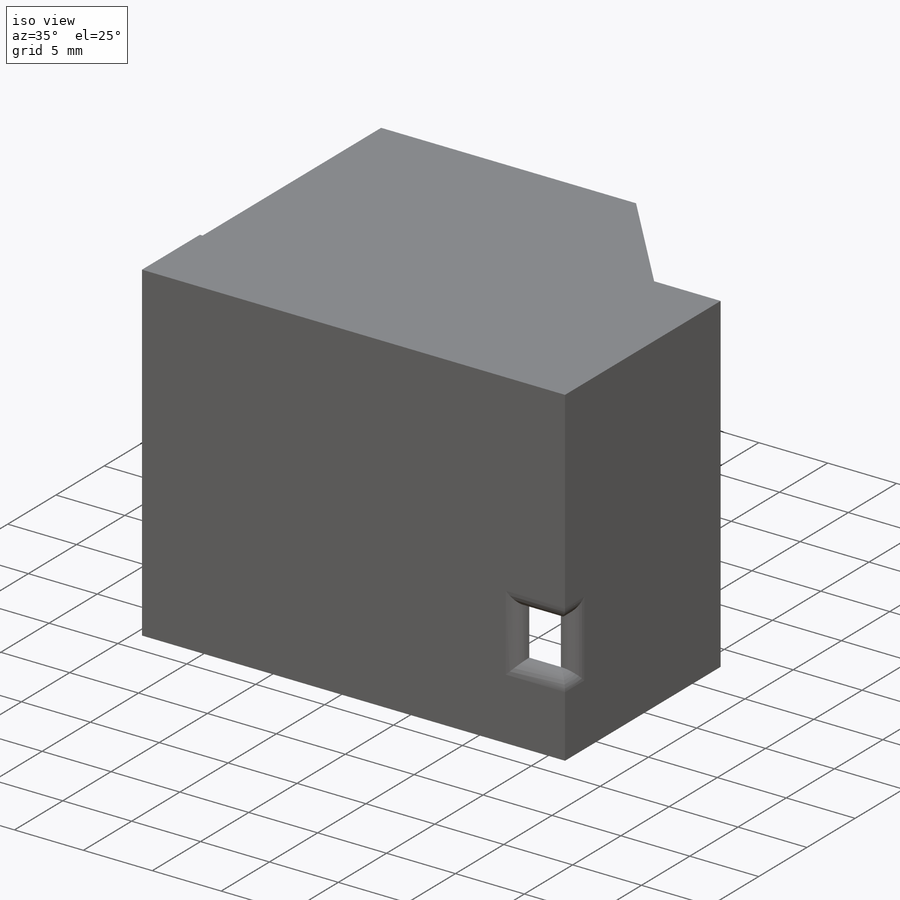
[diagram: iso view]
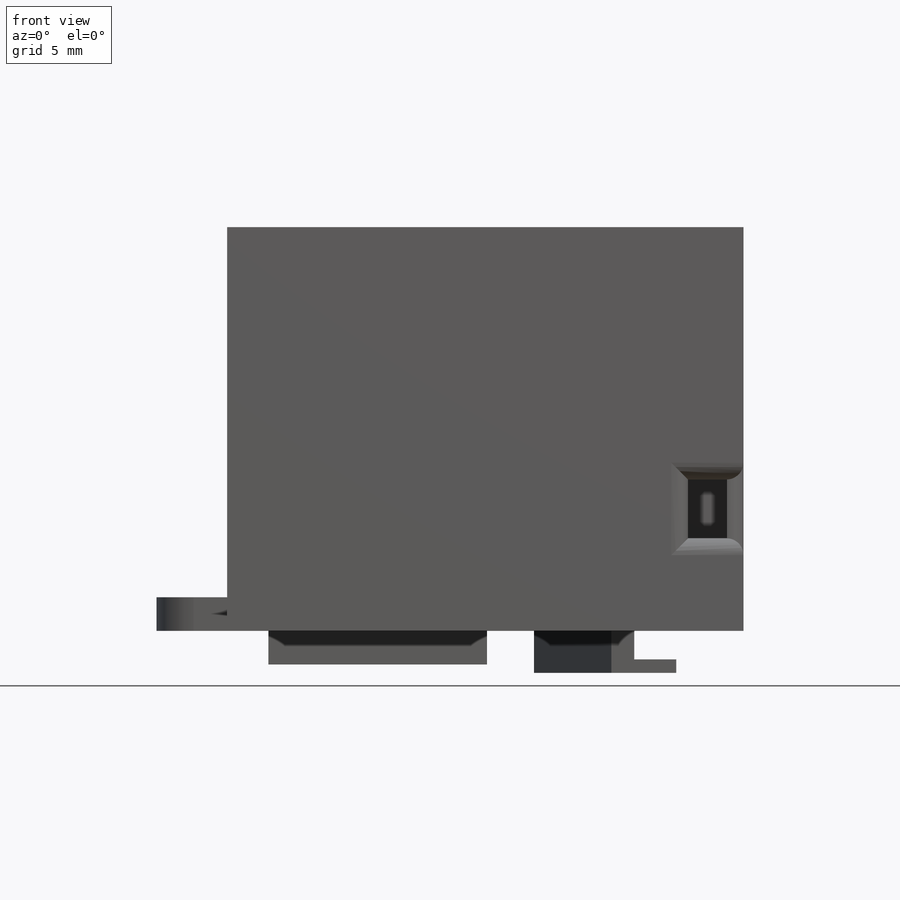
[diagram: front view]
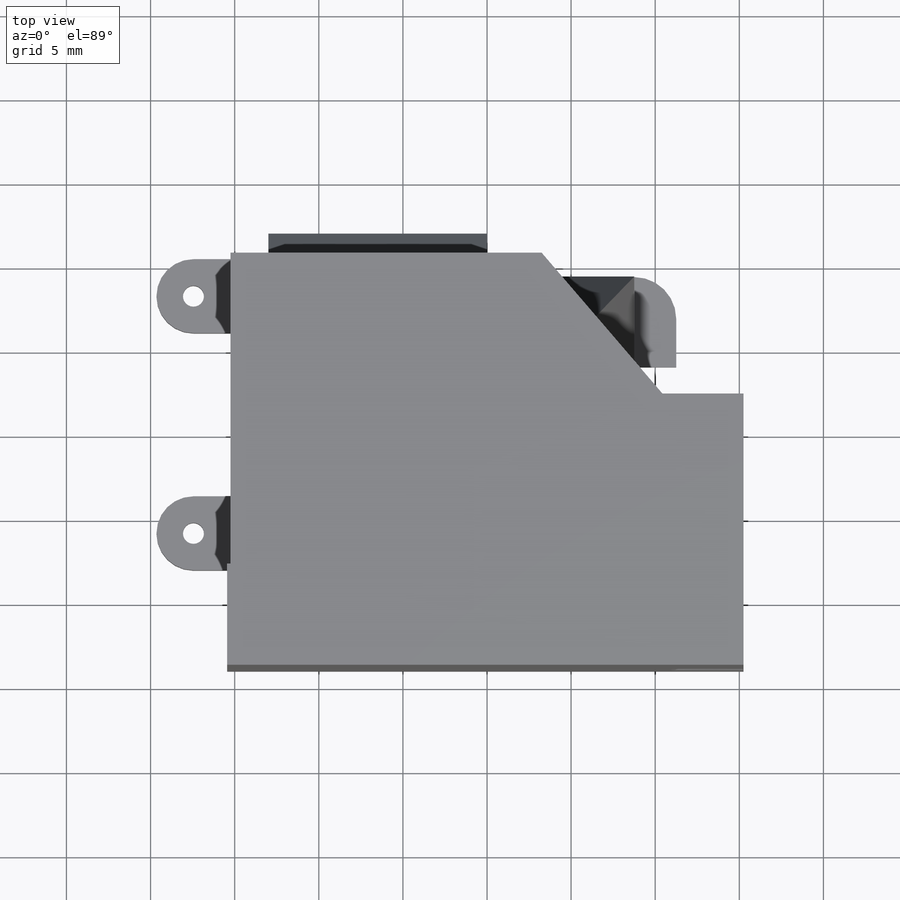
[diagram: top view]
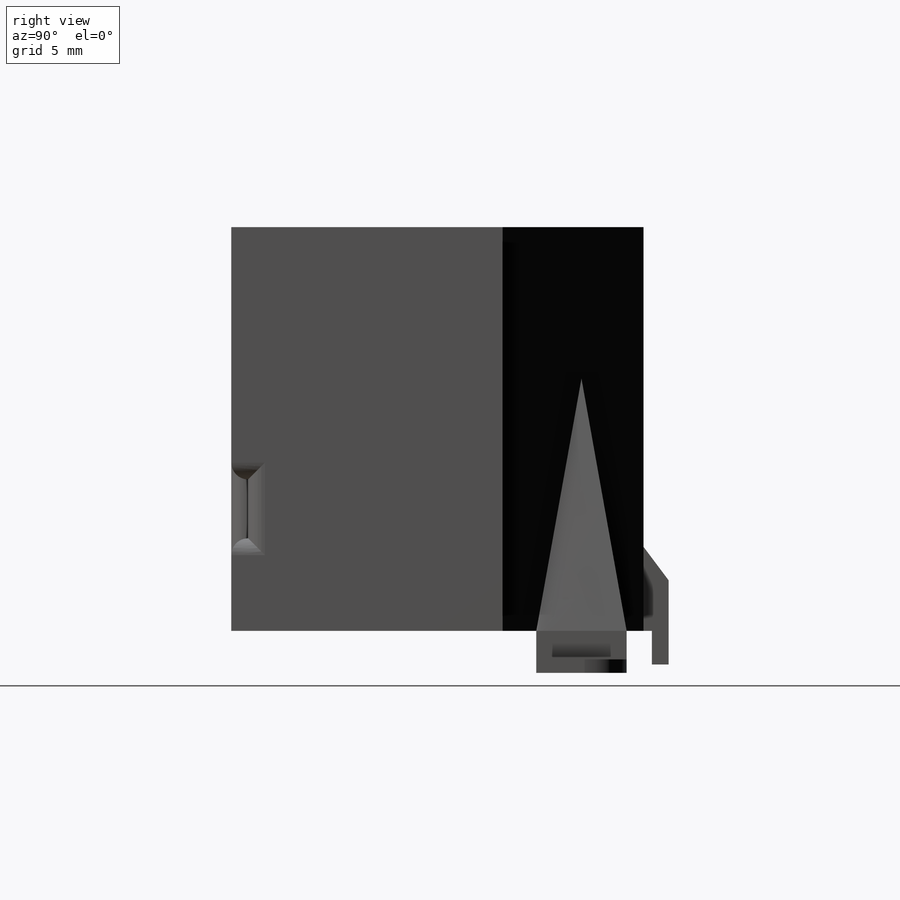
[diagram: right view]
SOLIDWORKS PART (.sldprt)
format: sldprt  version: not decoded by parser v0  size: 437,248 bytes
history: native  units: mm
features: sketch x13, extrude x6, cut_extrude x6, fillet x2, material x1, shell x1, chamfer x1 (+13 scaffold rows collapsed)
feature tree (43):
  scaffold x13  (default folders/planes/origin — collapsed)
  material  "Material <not specified>"
  sketch  "Sketch1"  dims[c1.D1=2.794mm c1.D2=30.5mm c2.D1=21.0mm]
  extrude  "Boss-Extrude1"  Depth=24mm
  sketch  "Sketch2"  dims[D1=12.0mm D2=8.37mm D3=~7.174286mm]
  cut_extrude  "Cut-Extrude1"  [1 undecoded]
  shell  "Shell1"  Thickness=1mm
  sketch  "Sketch5"  dims[D1=1.0mm D2=26.5mm]
  extrude  "Boss-Extrude4"  Depth=2.5mm
  sketch  "Sketch6"  dims[D1=2.5mm]
  cut_extrude  "Cut-Extrude5"  Depth=1.7mm
  sketch  "Sketch9"  dims[D1=4.5mm]
  cut_extrude  "Cut-Extrude6"  Depth=4mm
  sketch  "Sketch10"  dims[D1=15.0mm]
  sketch  "Sketch11"  dims[D1=4.4mm D2=1.25mm D3=18.5mm]
  extrude  "Boss-Extrude6"  Depth=2mm
  fillet  "Fillet1"  Radius=2.5mm
  sketch  "Sketch13"  dims[D1=5.0mm D2=13.0mm]
  extrude  "Boss-Extrude7"  Depth=1.5mm
  sketch  "Sketch14"  dims[D1=1.0mm]
  extrude  "Boss-Extrude8"  Depth=2mm
  chamfer  "Chamfer1"  Distance=1.5mm
  sketch  "Sketch15"
  cut_extrude  "Cut-Extrude7"  [1 undecoded]
  sketch  "Sketch17"  dims[c1.D1=1.0mm c1.D2=1.0mm c1.D3=6.0mm c2.D1=30.7mm]
  extrude  "Boss-Extrude9"  Depth=24mm
  sketch  "Sketch18"  dims[c1.D1=1.0mm c1.D2=0.0mm c2.D1=1.0mm c2.D2=1.0mm c2.D3=1.0mm c3.D1=1.0mm]
  cut_extrude  "Cut-Extrude10"  [1 undecoded]
  sketch  "Sketch19"  dims[D1=5.5mm D2=9.0mm D3=3.3mm]
  cut_extrude  "Cut-Extrude11"  Depth=1mm
  fillet  "Fillet2"  Radius=1mm
decode coverage: 25 of 29 modeling features carry decoded parameters
note: ~ marks probable driven/reference dimensions
note: 3 parameter values undecoded
summary: no parameter record found for 3 features
note: suppression state not decoded; provenance and decode notes live in map.json
